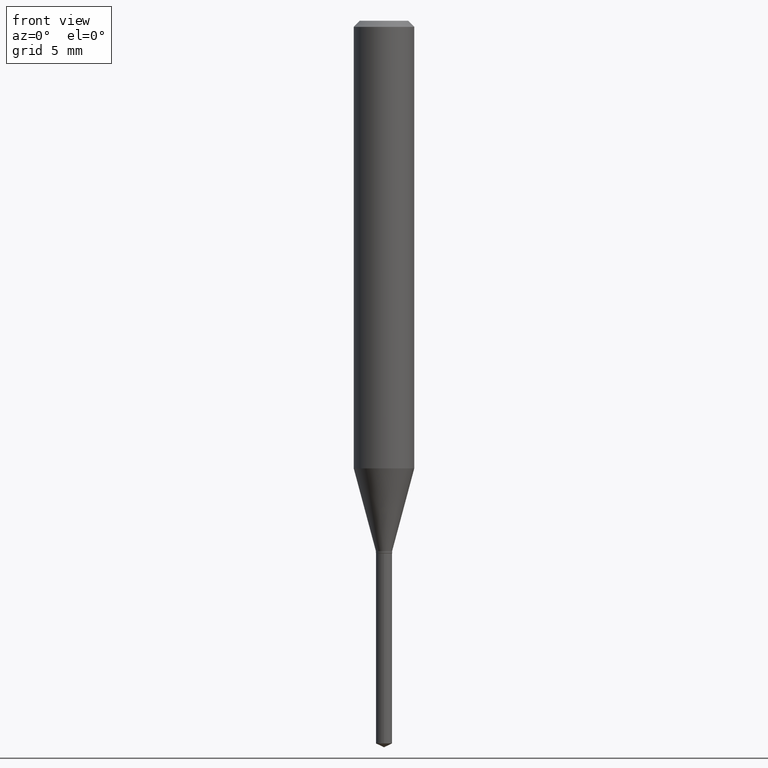
[diagram: clean part render]
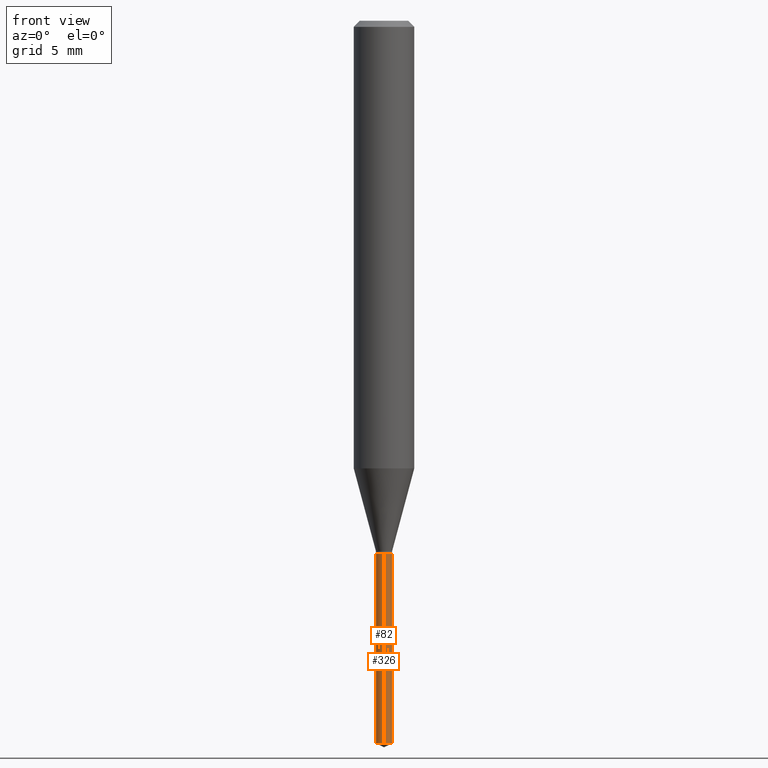
[diagram: same view with one multi-face feature highlighted, each face labeled with its STEP entity id]
A machine part, front view. The highlighted faces form ONE feature: a constant-radius fillet chain: 2 tangent blend faces with common blend radius 0.4255 mm. The faces share edges in the B-rep.
Their STEP definitions:
[1] entity #326 (Cylinder):
#1 = VERTEX_POINT ( 'NONE', #352 ) ;
#14 = CARTESIAN_POINT ( 'NONE',  ( 1.190159082398436835E-16, 0.01674999999999616032, -1.100000000000000089 ) ) ;
#39 = DIRECTION ( 'NONE',  ( -2.445399690415121530E-29, 3.491580316559632610E-15, 1.000000000000000000 ) ) ;
#49 = LINE ( 'NONE', #14, #406 ) ;
#60 = CYLINDRICAL_SURFACE ( 'NONE', #292, 0.01675000000000000447 ) ;
#66 = EDGE_LOOP ( 'NONE', ( #444, #306, #465, #427 ) ) ;
#116 = VERTEX_POINT ( 'NONE', #211 ) ;
#118 = EDGE_CURVE ( 'NONE', #116, #215, #147, .T. ) ;
#145 = VECTOR ( 'NONE', #479, 39.37007874015748143 ) ;
#147 = CIRCLE ( 'NONE', #232, 0.01675000000000000447 ) ;
#161 = DIRECTION ( 'NONE',  ( -2.445399690415121810E-29, 3.491580316559632610E-15, 1.000000000000000000 ) ) ;
#176 = CARTESIAN_POINT ( 'NONE',  ( 2.690015686803650369E-29, -3.840629472727460101E-15, -1.100000000000000089 ) ) ;
#178 = CARTESIAN_POINT ( 'NONE',  ( -1.169646248512180840E-16, -0.01675000000000384515, -1.100000000000000089 ) ) ;
#182 = EDGE_CURVE ( 'NONE', #1, #189, #185, .T. ) ;
#185 = CIRCLE ( 'NONE', #307, 0.01675000000000000447 ) ;
#189 = VERTEX_POINT ( 'NONE', #262 ) ;
#192 = EDGE_CURVE ( 'NONE', #116, #1, #217, .T. ) ;
#211 = CARTESIAN_POINT ( 'NONE',  ( -1.169646248512084451E-16, -0.01675000000000521211, -1.492189346725903976 ) ) ;
#215 = VERTEX_POINT ( 'NONE', #343 ) ;
#217 = LINE ( 'NONE', #178, #145 ) ;
#232 = AXIS2_PLACEMENT_3D ( 'NONE', #394, #365, #470 ) ;
#262 = CARTESIAN_POINT ( 'NONE',  ( 1.190159082398533470E-16, 0.01674999999999616379, -1.100000000000000089 ) ) ;
#292 = AXIS2_PLACEMENT_3D ( 'NONE', #408, #385, #441 ) ;
#306 = ORIENTED_EDGE ( 'NONE', *, *, #410, .T. ) ;
#307 = AXIS2_PLACEMENT_3D ( 'NONE', #176, #39, #339 ) ;
#326 = ADVANCED_FACE ( 'NONE', ( #455 ), #60, .T. ) ;
#339 = DIRECTION ( 'NONE',  ( -6.982962677686265922E-15, -1.000000000000000000, 0.000000000000000000 ) ) ;
#343 = CARTESIAN_POINT ( 'NONE',  ( 1.190159082398532484E-16, 0.01674999999999478989, -1.492189346725903976 ) ) ;
#352 = CARTESIAN_POINT ( 'NONE',  ( -1.169646248512180840E-16, -0.01675000000000384515, -1.100000000000000089 ) ) ;
#365 = DIRECTION ( 'NONE',  ( -2.445399690415121530E-29, 3.491580316559632610E-15, 1.000000000000000000 ) ) ;
#385 = DIRECTION ( 'NONE',  ( -2.445399690415121530E-29, 3.491580316559632610E-15, 1.000000000000000000 ) ) ;
#394 = CARTESIAN_POINT ( 'NONE',  ( 3.649075393871284375E-29, -5.209990076120007424E-15, -1.492189346725903976 ) ) ;
#406 = VECTOR ( 'NONE', #161, 39.37007874015748143 ) ;
#408 = CARTESIAN_POINT ( 'NONE',  ( 2.690015686803650369E-29, -3.840629472727460101E-15, -1.100000000000000089 ) ) ;
#410 = EDGE_CURVE ( 'NONE', #215, #189, #49, .T. ) ;
#427 = ORIENTED_EDGE ( 'NONE', *, *, #192, .F. ) ;
#441 = DIRECTION ( 'NONE',  ( -6.982962677686265922E-15, -1.000000000000000000, 0.000000000000000000 ) ) ;
#444 = ORIENTED_EDGE ( 'NONE', *, *, #118, .T. ) ;
#455 = FACE_OUTER_BOUND ( 'NONE', #66, .T. ) ;
#465 = ORIENTED_EDGE ( 'NONE', *, *, #182, .F. ) ;
#470 = DIRECTION ( 'NONE',  ( -6.982962677686265922E-15, -1.000000000000000000, 0.000000000000000000 ) ) ;
#479 = DIRECTION ( 'NONE',  ( -2.445399690415121810E-29, 3.491580316559632610E-15, 1.000000000000000000 ) ) ;
[2] entity #82 (Cylinder):
#1 = VERTEX_POINT ( 'NONE', #352 ) ;
#14 = CARTESIAN_POINT ( 'NONE',  ( 1.190159082398436835E-16, 0.01674999999999616032, -1.100000000000000089 ) ) ;
#18 = CIRCLE ( 'NONE', #490, 0.01675000000000000447 ) ;
#23 = DIRECTION ( 'NONE',  ( -6.982962677686265922E-15, -1.000000000000000000, 0.000000000000000000 ) ) ;
#49 = LINE ( 'NONE', #14, #406 ) ;
#61 = AXIS2_PLACEMENT_3D ( 'NONE', #313, #87, #235 ) ;
#82 = ADVANCED_FACE ( 'NONE', ( #203 ), #403, .T. ) ;
#85 = DIRECTION ( 'NONE',  ( -6.982962677686265922E-15, -1.000000000000000000, 0.000000000000000000 ) ) ;
#87 = DIRECTION ( 'NONE',  ( -2.445399690415121530E-29, 3.491580316559632610E-15, 1.000000000000000000 ) ) ;
#116 = VERTEX_POINT ( 'NONE', #211 ) ;
#134 = EDGE_CURVE ( 'NONE', #215, #116, #18, .T. ) ;
#145 = VECTOR ( 'NONE', #479, 39.37007874015748143 ) ;
#150 = ORIENTED_EDGE ( 'NONE', *, *, #155, .F. ) ;
#155 = EDGE_CURVE ( 'NONE', #189, #1, #367, .T. ) ;
#161 = DIRECTION ( 'NONE',  ( -2.445399690415121810E-29, 3.491580316559632610E-15, 1.000000000000000000 ) ) ;
#172 = CARTESIAN_POINT ( 'NONE',  ( 2.690015686803650369E-29, -3.840629472727460101E-15, -1.100000000000000089 ) ) ;
#174 = AXIS2_PLACEMENT_3D ( 'NONE', #172, #362, #23 ) ;
#178 = CARTESIAN_POINT ( 'NONE',  ( -1.169646248512180840E-16, -0.01675000000000384515, -1.100000000000000089 ) ) ;
#189 = VERTEX_POINT ( 'NONE', #262 ) ;
#192 = EDGE_CURVE ( 'NONE', #116, #1, #217, .T. ) ;
#203 = FACE_OUTER_BOUND ( 'NONE', #346, .T. ) ;
#211 = CARTESIAN_POINT ( 'NONE',  ( -1.169646248512084451E-16, -0.01675000000000521211, -1.492189346725903976 ) ) ;
#215 = VERTEX_POINT ( 'NONE', #343 ) ;
#217 = LINE ( 'NONE', #178, #145 ) ;
#226 = ORIENTED_EDGE ( 'NONE', *, *, #192, .T. ) ;
#235 = DIRECTION ( 'NONE',  ( -6.982962677686265922E-15, -1.000000000000000000, 0.000000000000000000 ) ) ;
#262 = CARTESIAN_POINT ( 'NONE',  ( 1.190159082398533470E-16, 0.01674999999999616379, -1.100000000000000089 ) ) ;
#285 = DIRECTION ( 'NONE',  ( -2.445399690415121530E-29, 3.491580316559632610E-15, 1.000000000000000000 ) ) ;
#313 = CARTESIAN_POINT ( 'NONE',  ( 2.690015686803650369E-29, -3.840629472727460101E-15, -1.100000000000000089 ) ) ;
#343 = CARTESIAN_POINT ( 'NONE',  ( 1.190159082398532484E-16, 0.01674999999999478989, -1.492189346725903976 ) ) ;
#346 = EDGE_LOOP ( 'NONE', ( #412, #421, #226, #150 ) ) ;
#352 = CARTESIAN_POINT ( 'NONE',  ( -1.169646248512180840E-16, -0.01675000000000384515, -1.100000000000000089 ) ) ;
#362 = DIRECTION ( 'NONE',  ( -2.445399690415121530E-29, 3.491580316559632610E-15, 1.000000000000000000 ) ) ;
#367 = CIRCLE ( 'NONE', #61, 0.01675000000000000447 ) ;
#403 = CYLINDRICAL_SURFACE ( 'NONE', #174, 0.01675000000000000447 ) ;
#406 = VECTOR ( 'NONE', #161, 39.37007874015748143 ) ;
#410 = EDGE_CURVE ( 'NONE', #215, #189, #49, .T. ) ;
#412 = ORIENTED_EDGE ( 'NONE', *, *, #410, .F. ) ;
#421 = ORIENTED_EDGE ( 'NONE', *, *, #134, .T. ) ;
#477 = CARTESIAN_POINT ( 'NONE',  ( 3.649075393871284375E-29, -5.209990076120007424E-15, -1.492189346725903976 ) ) ;
#479 = DIRECTION ( 'NONE',  ( -2.445399690415121810E-29, 3.491580316559632610E-15, 1.000000000000000000 ) ) ;
#490 = AXIS2_PLACEMENT_3D ( 'NONE', #477, #285, #85 ) ;